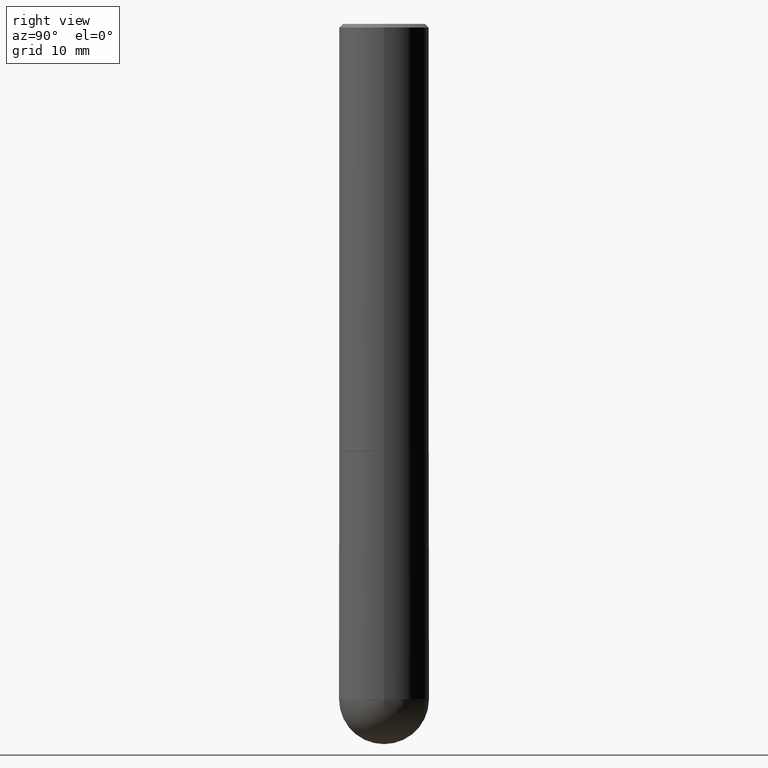
[diagram: clean part render]
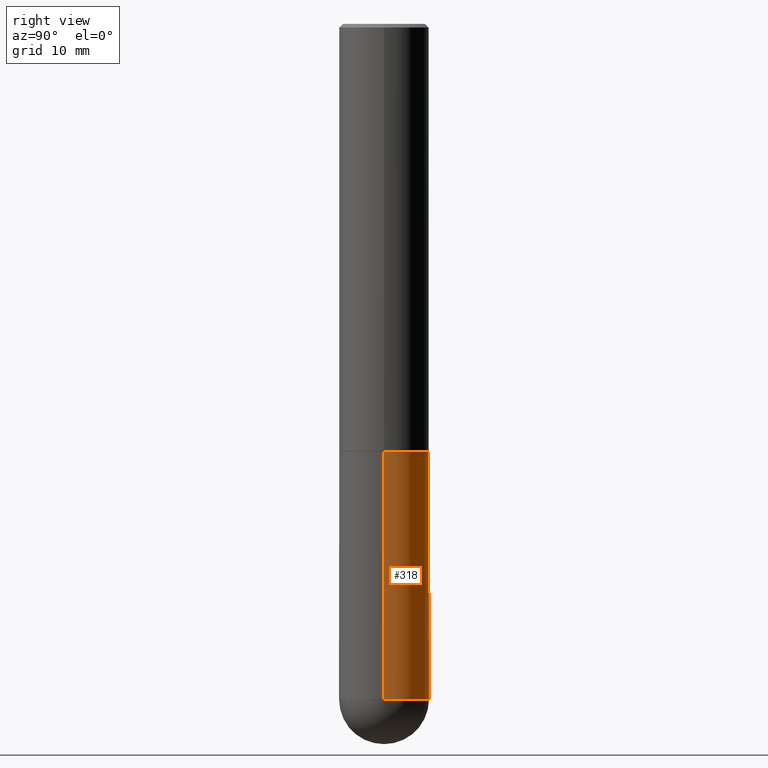
[diagram: same view with one face highlighted and labeled with its STEP entity id]
A machine part, right view. The second image highlights one B-rep face of the part: STEP entity #318.
In plain terms, the highlighted cylindrical surface (partial cylindrical patch) has radius 6.35 mm, axis along (-0, 0, 1).
Its self-contained STEP definition (entity closure, byte-faithful):
#4 = DIRECTION ( 'NONE',  ( -2.445468806185136597E-29, 3.491481338843145583E-15, 1.000000000000000000 ) ) ;
#15 = AXIS2_PLACEMENT_3D ( 'NONE', #54, #304, #402 ) ;
#16 = VERTEX_POINT ( 'NONE', #84 ) ;
#23 = DIRECTION ( 'NONE',  ( 1.000000000000000000, -6.982962677686262766E-15, 0.000000000000000000 ) ) ;
#24 = CARTESIAN_POINT ( 'NONE',  ( -0.2500000000000000000, -8.916304760806885668E-15, -3.750000000000000000 ) ) ;
#32 = DIRECTION ( 'NONE',  ( -2.445468806185136877E-29, 3.491481338843145188E-15, 1.000000000000000000 ) ) ;
#36 = CARTESIAN_POINT ( 'NONE',  ( 0.2500000000000000000, -1.003800884917403837E-14, -2.375000000000000000 ) ) ;
#48 = ORIENTED_EDGE ( 'NONE', *, *, #200, .T. ) ;
#53 = EDGE_CURVE ( 'NONE', #394, #16, #379, .T. ) ;
#54 = CARTESIAN_POINT ( 'NONE',  ( 5.807988414689699417E-29, -8.292268179752470118E-15, -2.375000000000000000 ) ) ;
#61 = VECTOR ( 'NONE', #228, 39.37007874015748143 ) ;
#66 = LINE ( 'NONE', #404, #101 ) ;
#84 = CARTESIAN_POINT ( 'NONE',  ( -0.2500000000000000000, -8.916304760806884090E-15, -2.375000000000000000 ) ) ;
#92 = CARTESIAN_POINT ( 'NONE',  ( 0.2500000000000000000, -1.243840226962870281E-14, -3.750000000000000000 ) ) ;
#101 = VECTOR ( 'NONE', #32, 39.37007874015748143 ) ;
#103 = EDGE_CURVE ( 'NONE', #258, #199, #118, .T. ) ;
#104 = VERTEX_POINT ( 'NONE', #24 ) ;
#118 = CIRCLE ( 'NONE', #286, 0.2500000000000000000 ) ;
#122 = EDGE_CURVE ( 'NONE', #258, #394, #338, .T. ) ;
#143 = ORIENTED_EDGE ( 'NONE', *, *, #103, .T. ) ;
#153 = CARTESIAN_POINT ( 'NONE',  ( 9.170508023194262238E-29, -1.309305502066179741E-14, -3.750000000000000000 ) ) ;
#178 = AXIS2_PLACEMENT_3D ( 'NONE', #153, #4, #409 ) ;
#183 = FACE_OUTER_BOUND ( 'NONE', #282, .T. ) ;
#199 = VERTEX_POINT ( 'NONE', #244 ) ;
#200 = EDGE_CURVE ( 'NONE', #199, #104, #343, .T. ) ;
#202 = ORIENTED_EDGE ( 'NONE', *, *, #122, .F. ) ;
#206 = CARTESIAN_POINT ( 'NONE',  ( 9.170508023194262238E-29, -1.309305502066179741E-14, -3.750000000000000000 ) ) ;
#208 = DIRECTION ( 'NONE',  ( -2.445468806185136597E-29, 3.491481338843145583E-15, 1.000000000000000000 ) ) ;
#228 = DIRECTION ( 'NONE',  ( -2.445468806185136877E-29, 3.491481338843145188E-15, 1.000000000000000000 ) ) ;
#244 = CARTESIAN_POINT ( 'NONE',  ( 1.745740669421657002E-15, 0.2499999999999867606, -3.750000000000001332 ) ) ;
#254 = ORIENTED_EDGE ( 'NONE', *, *, #53, .F. ) ;
#258 = VERTEX_POINT ( 'NONE', #92 ) ;
#266 = CARTESIAN_POINT ( 'NONE',  ( 0.2500000000000000000, -1.745740669421566678E-15, 1.219044193948983948E-29 ) ) ;
#270 = AXIS2_PLACEMENT_3D ( 'NONE', #344, #208, #411 ) ;
#276 = CYLINDRICAL_SURFACE ( 'NONE', #270, 0.2500000000000000000 ) ;
#282 = EDGE_LOOP ( 'NONE', ( #48, #334, #254, #202, #143 ) ) ;
#286 = AXIS2_PLACEMENT_3D ( 'NONE', #206, #369, #23 ) ;
#304 = DIRECTION ( 'NONE',  ( -2.445468806185136597E-29, 3.491481338843145583E-15, 1.000000000000000000 ) ) ;
#318 = ADVANCED_FACE ( 'NONE', ( #183 ), #276, .T. ) ;
#334 = ORIENTED_EDGE ( 'NONE', *, *, #341, .T. ) ;
#338 = LINE ( 'NONE', #266, #61 ) ;
#341 = EDGE_CURVE ( 'NONE', #104, #16, #66, .T. ) ;
#343 = CIRCLE ( 'NONE', #178, 0.2500000000000000000 ) ;
#344 = CARTESIAN_POINT ( 'NONE',  ( 0.000000000000000000, 0.000000000000000000, 0.000000000000000000 ) ) ;
#369 = DIRECTION ( 'NONE',  ( -2.445468806185136597E-29, 3.491481338843145583E-15, 1.000000000000000000 ) ) ;
#379 = CIRCLE ( 'NONE', #15, 0.2500000000000000000 ) ;
#394 = VERTEX_POINT ( 'NONE', #36 ) ;
#402 = DIRECTION ( 'NONE',  ( 1.000000000000000000, -6.982962677686270655E-15, 0.000000000000000000 ) ) ;
#404 = CARTESIAN_POINT ( 'NONE',  ( -0.2500000000000000000, 1.776356839400250465E-15, -1.229733772563726445E-29 ) ) ;
#409 = DIRECTION ( 'NONE',  ( 1.000000000000000000, -6.982962677686262766E-15, 0.000000000000000000 ) ) ;
#411 = DIRECTION ( 'NONE',  ( 1.000000000000000000, -6.982962677686266711E-15, 4.876176775795935793E-29 ) ) ;